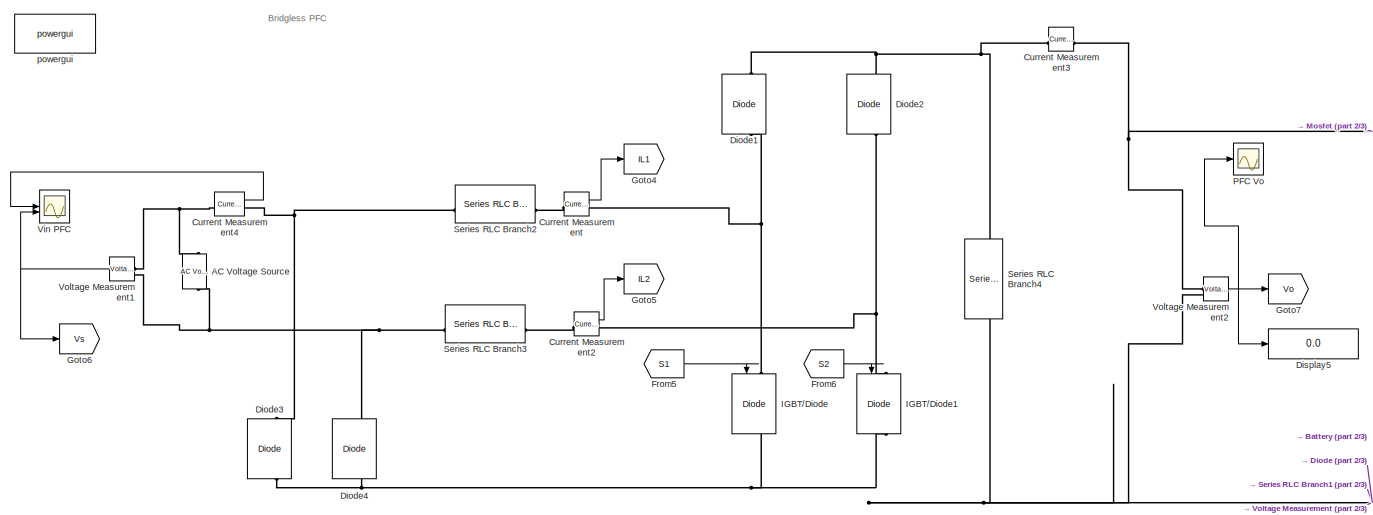
[diagram: root canvas - part 1/3, top left region]
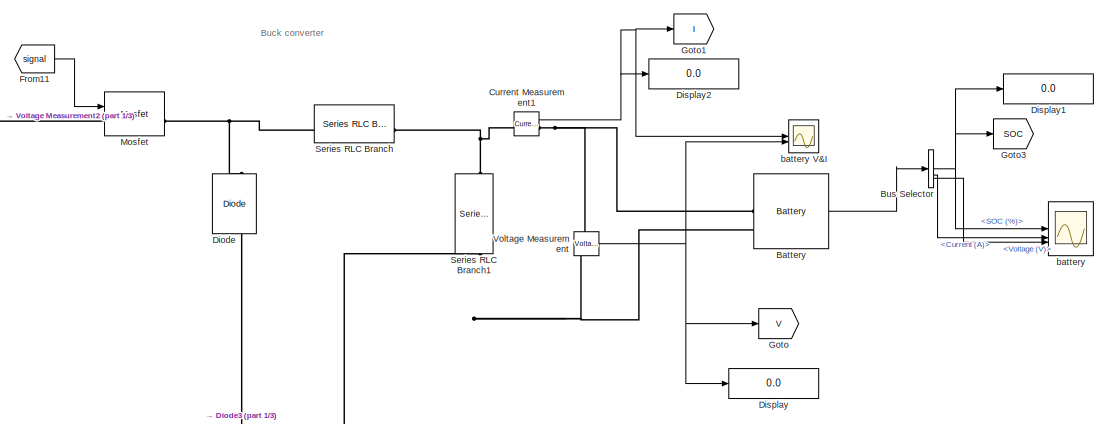
[diagram: root canvas - part 2/3, top right region]
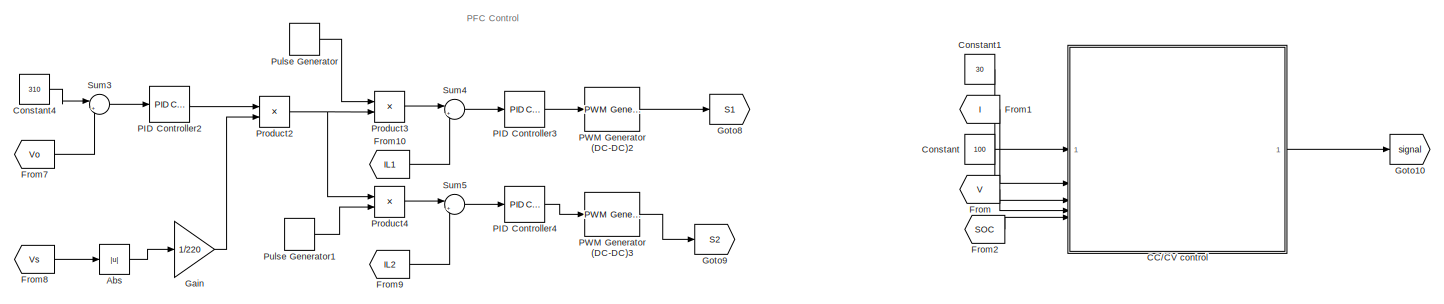
[diagram: root canvas - part 3/3, bottom center region]
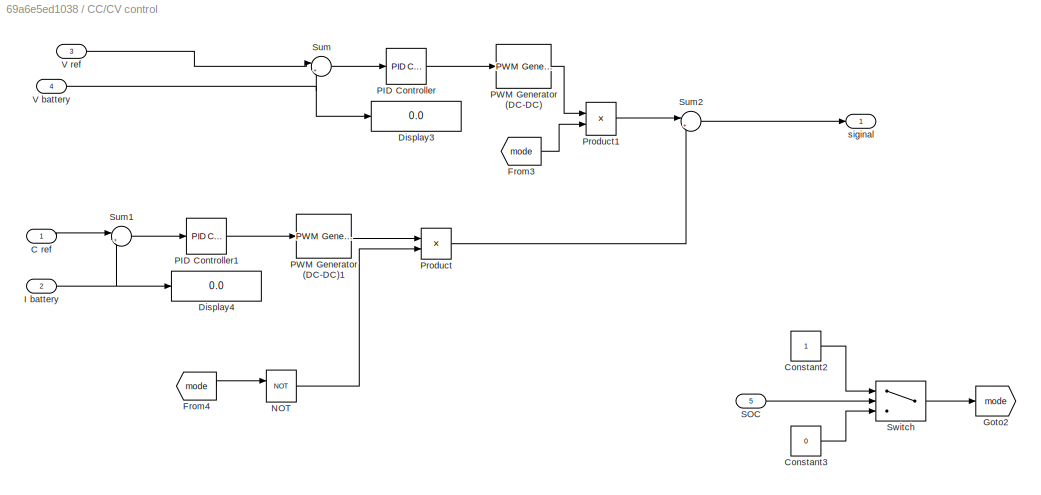
MODEL slx_69a6e5ed1038
KIND model
CONFIG AbsTol = auto
CONFIG EnableMultiTasking = off
CONFIG FixedStep = auto
CONFIG MaxStep = 1e-5
CONFIG MinStep = auto
CONFIG RelTol = 1e-3
CONFIG SampleTimeConstraint = Unconstrained
CONFIG SolverName = ode23tb
CONFIG StartTime = 0.0
CONFIG StopTime = 2
BLOCK [Reference] AC Voltage Source  REF=spsACVoltageSourceLib/AC Voltage Source
  LibrarySourceBlock = sps_lib/Sources/AC Voltage Source
  SourceBlock = spsACVoltageSourceLib/AC Voltage Source
  SourceType = AC Voltage Source
BLOCK [Abs] Abs
  SaturateOnIntegerOverflow = off
BLOCK [Reference] Battery  REF=spsBatteryLib/Battery
  LibrarySourceBlock = sps_lib/Sources/Battery
  SourceBlock = spsBatteryLib/Battery
  SourceType = Battery
BLOCK [BusSelector] Bus Selector
  OutputSignals = SOC (%),Current (A),Voltage (V)
BLOCK [SubSystem] CC//CV control
BLOCK [Inport] CC//CV control/C ref
BLOCK [Constant] CC//CV control/Constant2
BLOCK [Constant] CC//CV control/Constant3
  Value = 0
BLOCK [Display] CC//CV control/Display3
  Decimation = 1
BLOCK [Display] CC//CV control/Display4
  Decimation = 1
BLOCK [From] CC//CV control/From3
  GotoTag = mode
BLOCK [From] CC//CV control/From4
  GotoTag = mode
BLOCK [Goto] CC//CV control/Goto2
  GotoTag = mode
BLOCK [Inport] CC//CV control/I battery
  Port = 2
BLOCK [Logic] CC//CV control/NOT
  AllPortsSameDT = off
  IconShape = distinctive
  Operator = NOT
  OutDataTypeStr = boolean
BLOCK [Reference] CC//CV control/PID Controller  REF=slpidlib/PID Controller
  LibrarySourceBlock = simulink/Continuous/PID Controller
  SourceBlock = slpidlib/PID Controller
  SourceType = PID 1dof
BLOCK [Reference] CC//CV control/PID Controller1  REF=slpidlib/PID Controller
  LibrarySourceBlock = simulink/Continuous/PID Controller
  SourceBlock = slpidlib/PID Controller
  SourceType = PID 1dof
BLOCK [Reference] CC//CV control/PWM Generator (DC-DC)  REF=spsPWMGeneratorDCDCLib/PWM Generator
(DC-DC)
  LibrarySourceBlock = sps_lib/Power Electronics/Power Electronics Control/PWM Generator\n(DC-DC)
  SourceBlock = spsPWMGeneratorDCDCLib/PWM Generator\n(DC-DC)
  SourceType = PWM Generator (DC-DC)
BLOCK [Reference] CC//CV control/PWM Generator (DC-DC)1  REF=spsPWMGeneratorDCDCLib/PWM Generator
(DC-DC)
  LibrarySourceBlock = sps_lib/Power Electronics/Power Electronics Control/PWM Generator\n(DC-DC)
  SourceBlock = spsPWMGeneratorDCDCLib/PWM Generator\n(DC-DC)
  SourceType = PWM Generator (DC-DC)
BLOCK [Product] CC//CV control/Product
BLOCK [Product] CC//CV control/Product1
BLOCK [Inport] CC//CV control/SOC
  Port = 5
BLOCK [Sum] CC//CV control/Sum
  Inputs = |+-
BLOCK [Sum] CC//CV control/Sum1
  Inputs = |+-
BLOCK [Sum] CC//CV control/Sum2
  Inputs = |++
BLOCK [Switch] CC//CV control/Switch
  Criteria = u2 > Threshold
  InputSameDT = off
  SaturateOnIntegerOverflow = off
  Threshold = 80
BLOCK [Inport] CC//CV control/V battery
  Port = 4
BLOCK [Inport] CC//CV control/V ref
  Port = 3
BLOCK [Outport] CC//CV control/siginal
BLOCK [Constant] Constant
  Value = 100
BLOCK [Constant] Constant1
  Value = 30
BLOCK [Constant] Constant4
  Value = 310
BLOCK [Reference] Current Measurement  REF=spsCurrentMeasurementLib/Current Measurement
  LibrarySourceBlock = sps_lib/Sensors and Measurements/Current Measurement
  SourceBlock = spsCurrentMeasurementLib/Current Measurement
  SourceType = Current Measurement
  UserDataPersistent = on
BLOCK [Reference] Current Measurement1  REF=spsCurrentMeasurementLib/Current Measurement
  LibrarySourceBlock = sps_lib/Sensors and Measurements/Current Measurement
  SourceBlock = spsCurrentMeasurementLib/Current Measurement
  SourceType = Current Measurement
  UserDataPersistent = on
BLOCK [Reference] Current Measurement2  REF=spsCurrentMeasurementLib/Current Measurement
  LibrarySourceBlock = sps_lib/Sensors and Measurements/Current Measurement
  SourceBlock = spsCurrentMeasurementLib/Current Measurement
  SourceType = Current Measurement
  UserDataPersistent = on
BLOCK [Reference] Current Measurement3  REF=spsCurrentMeasurementLib/Current Measurement
  LibrarySourceBlock = sps_lib/Sensors and Measurements/Current Measurement
  SourceBlock = spsCurrentMeasurementLib/Current Measurement
  SourceType = Current Measurement
  UserDataPersistent = on
BLOCK [Reference] Current Measurement4  REF=spsCurrentMeasurementLib/Current Measurement
  LibrarySourceBlock = sps_lib/Sensors and Measurements/Current Measurement
  SourceBlock = spsCurrentMeasurementLib/Current Measurement
  SourceType = Current Measurement
  UserDataPersistent = on
BLOCK [Reference] Diode  REF=spsDiodeLib/Diode
  LibrarySourceBlock = sps_lib/Power Electronics/Diode
  NameLocation = right
  SourceBlock = spsDiodeLib/Diode
  SourceType = Diode
BLOCK [Reference] Diode1  REF=spsDiodeLib/Diode
  LibrarySourceBlock = sps_lib/Power Electronics/Diode
  NameLocation = right
  SourceBlock = spsDiodeLib/Diode
  SourceType = Diode
BLOCK [Reference] Diode2  REF=spsDiodeLib/Diode
  LibrarySourceBlock = sps_lib/Power Electronics/Diode
  NameLocation = right
  SourceBlock = spsDiodeLib/Diode
  SourceType = Diode
BLOCK [Reference] Diode3  REF=spsDiodeLib/Diode
  LibrarySourceBlock = sps_lib/Power Electronics/Diode
  NameLocation = right
  SourceBlock = spsDiodeLib/Diode
  SourceType = Diode
BLOCK [Reference] Diode4  REF=spsDiodeLib/Diode
  LibrarySourceBlock = sps_lib/Power Electronics/Diode
  NameLocation = right
  SourceBlock = spsDiodeLib/Diode
  SourceType = Diode
BLOCK [Display] Display
  Decimation = 1
BLOCK [Display] Display1
  Decimation = 1
BLOCK [Display] Display2
  Decimation = 1
BLOCK [Display] Display5
  Decimation = 1
BLOCK [From] From
  GotoTag = V
BLOCK [From] From1
  GotoTag = I
BLOCK [From] From10
  GotoTag = IL1
BLOCK [From] From11
  GotoTag = signal
BLOCK [From] From2
  GotoTag = SOC
BLOCK [From] From5
  GotoTag = S1
BLOCK [From] From6
  GotoTag = S2
BLOCK [From] From7
  GotoTag = Vo
BLOCK [From] From8
  GotoTag = Vs
BLOCK [From] From9
  GotoTag = IL2
BLOCK [Gain] Gain
  Gain = 1/220
BLOCK [Goto] Goto
  GotoTag = V
BLOCK [Goto] Goto1
  GotoTag = I
BLOCK [Goto] Goto10
  GotoTag = signal
BLOCK [Goto] Goto3
  GotoTag = SOC
BLOCK [Goto] Goto4
  GotoTag = IL1
BLOCK [Goto] Goto5
  GotoTag = IL2
BLOCK [Goto] Goto6
  GotoTag = Vs
BLOCK [Goto] Goto7
  GotoTag = Vo
BLOCK [Goto] Goto8
  GotoTag = S1
BLOCK [Goto] Goto9
  GotoTag = S2
BLOCK [Reference] IGBT//Diode  REF=spsIGBTDiodeLib/IGBT//Diode
  LibrarySourceBlock = sps_lib/Power Electronics/IGBT//Diode
  NameLocation = left
  SourceBlock = spsIGBTDiodeLib/IGBT//Diode
  SourceType = IGBT/Diode
BLOCK [Reference] IGBT//Diode1  REF=spsIGBTDiodeLib/IGBT//Diode
  LibrarySourceBlock = sps_lib/Power Electronics/IGBT//Diode
  NameLocation = left
  SourceBlock = spsIGBTDiodeLib/IGBT//Diode
  SourceType = IGBT/Diode
BLOCK [Reference] Mosfet  REF=spsMosfetLib/Mosfet
  LibrarySourceBlock = sps_lib/Power Electronics/Mosfet
  NameLocation = top
  SourceBlock = spsMosfetLib/Mosfet
  SourceType = Mosfet
BLOCK [Scope] PFC Vo
  Floating = off
  NumInputPorts = 1
  ScopeSpecificationString = Simulink.scopes.TimeScopeBlockCfg('CurrentConfiguration', extmgr.ConfigurationSet(extmgr.Configuration('Core','General UI',true,'FigureColor',[1 1 1]),extmgr.Configuration('Core','Source UI',true),extmgr.Configuration('Sources','WiredSimulink',true,'DataLoggingVariableName','ScopeData3'),extmgr.Configuration('Visuals','Time Domain',true,'SerializedDisplays',{struct('MinYLimReal','-40.71261','MaxYL...<+1509ch>
BLOCK [Reference] PID Controller2  REF=slpidlib/PID Controller
  LibrarySourceBlock = simulink/Continuous/PID Controller
  SourceBlock = slpidlib/PID Controller
  SourceType = PID 1dof
BLOCK [Reference] PID Controller3  REF=slpidlib/PID Controller
  LibrarySourceBlock = simulink/Continuous/PID Controller
  SourceBlock = slpidlib/PID Controller
  SourceType = PID 1dof
BLOCK [Reference] PID Controller4  REF=slpidlib/PID Controller
  LibrarySourceBlock = simulink/Continuous/PID Controller
  SourceBlock = slpidlib/PID Controller
  SourceType = PID 1dof
BLOCK [Reference] PWM Generator (DC-DC)2  REF=spsPWMGeneratorDCDCLib/PWM Generator
(DC-DC)
  LibrarySourceBlock = sps_lib/Power Electronics/Power Electronics Control/PWM Generator\n(DC-DC)
  SourceBlock = spsPWMGeneratorDCDCLib/PWM Generator\n(DC-DC)
  SourceType = PWM Generator (DC-DC)
BLOCK [Reference] PWM Generator (DC-DC)3  REF=spsPWMGeneratorDCDCLib/PWM Generator
(DC-DC)
  LibrarySourceBlock = sps_lib/Power Electronics/Power Electronics Control/PWM Generator\n(DC-DC)
  SourceBlock = spsPWMGeneratorDCDCLib/PWM Generator\n(DC-DC)
  SourceType = PWM Generator (DC-DC)
BLOCK [Product] Product2
BLOCK [Product] Product3
BLOCK [Product] Product4
BLOCK [DiscretePulseGenerator] Pulse Generator
  Period = 1/50
  PulseType = Time based
  PulseWidth = 50
BLOCK [DiscretePulseGenerator] Pulse Generator1
  Period = 1/50
  PhaseDelay = 0.01
  PulseType = Time based
  PulseWidth = 50
BLOCK [Reference] Series RLC Branch  REF=spsSeriesRLCBranchLib/Series RLC Branch
  LibrarySourceBlock = sps_lib/Passives/Series RLC Branch
  NameLocation = top
  SourceBlock = spsSeriesRLCBranchLib/Series RLC Branch
  SourceType = Series RLC Branch
BLOCK [Reference] Series RLC Branch1  REF=spsSeriesRLCBranchLib/Series RLC Branch
  LibrarySourceBlock = sps_lib/Passives/Series RLC Branch
  NameLocation = left
  SourceBlock = spsSeriesRLCBranchLib/Series RLC Branch
  SourceType = Series RLC Branch
BLOCK [Reference] Series RLC Branch2  REF=spsSeriesRLCBranchLib/Series RLC Branch
  LibrarySourceBlock = sps_lib/Passives/Series RLC Branch
  SourceBlock = spsSeriesRLCBranchLib/Series RLC Branch
  SourceType = Series RLC Branch
BLOCK [Reference] Series RLC Branch3  REF=spsSeriesRLCBranchLib/Series RLC Branch
  LibrarySourceBlock = sps_lib/Passives/Series RLC Branch
  SourceBlock = spsSeriesRLCBranchLib/Series RLC Branch
  SourceType = Series RLC Branch
BLOCK [Reference] Series RLC Branch4  REF=spsSeriesRLCBranchLib/Series RLC Branch
  LibrarySourceBlock = sps_lib/Passives/Series RLC Branch
  NameLocation = left
  SourceBlock = spsSeriesRLCBranchLib/Series RLC Branch
  SourceType = Series RLC Branch
BLOCK [Sum] Sum3
  Inputs = |+-
BLOCK [Sum] Sum4
  Inputs = |+-
BLOCK [Sum] Sum5
  Inputs = |+-
BLOCK [Scope] Vin PFC
  Floating = off
  NumInputPorts = 2
  ScopeSpecificationString = Simulink.scopes.TimeScopeBlockCfg('CurrentConfiguration', extmgr.ConfigurationSet(extmgr.Configuration('Core','General UI',true,'FigureColor',[1 1 1]),extmgr.Configuration('Core','Source UI',true),extmgr.Configuration('Sources','WiredSimulink',true,'DataLoggingVariableName','ScopeData2'),extmgr.Configuration('Visuals','Time Domain',true,'SerializedDisplays',{struct('MinYLimReal','-275.83485','MaxY...<+1742ch>
BLOCK [Reference] Voltage Measurement  REF=spsVoltageMeasurementLib/Voltage Measurement
  LibrarySourceBlock = sps_lib/Sensors and Measurements/Voltage Measurement
  SourceBlock = spsVoltageMeasurementLib/Voltage Measurement
  SourceType = Voltage Measurement
  UserDataPersistent = on
BLOCK [Reference] Voltage Measurement1  REF=spsVoltageMeasurementLib/Voltage Measurement
  LibrarySourceBlock = sps_lib/Sensors and Measurements/Voltage Measurement
  SourceBlock = spsVoltageMeasurementLib/Voltage Measurement
  SourceType = Voltage Measurement
  UserDataPersistent = on
BLOCK [Reference] Voltage Measurement2  REF=spsVoltageMeasurementLib/Voltage Measurement
  LibrarySourceBlock = sps_lib/Sensors and Measurements/Voltage Measurement
  SourceBlock = spsVoltageMeasurementLib/Voltage Measurement
  SourceType = Voltage Measurement
  UserDataPersistent = on
BLOCK [Scope] battery
  Floating = off
  NumInputPorts = 3
  ScopeSpecificationString = Simulink.scopes.TimeScopeBlockCfg('CurrentConfiguration', extmgr.ConfigurationSet(extmgr.Configuration('Core','General UI',true,'FigureColor',[1 1 1]),extmgr.Configuration('Core','Source UI',true),extmgr.Configuration('Sources','WiredSimulink',true),extmgr.Configuration('Visuals','Time Domain',true,'SerializedDisplays',{struct('MinYLimReal','79.97821','MaxYLimReal','79.99498','YLabelReal','','MinY...<+3132ch>
BLOCK [Scope] battery V&I
  Floating = off
  NumInputPorts = 2
  ScopeSpecificationString = Simulink.scopes.TimeScopeBlockCfg('CurrentConfiguration', extmgr.ConfigurationSet(extmgr.Configuration('Core','General UI',true,'FigureColor',[1 1 1]),extmgr.Configuration('Core','Source UI',true),extmgr.Configuration('Sources','WiredSimulink',true,'DataLoggingVariableName','ScopeData1'),extmgr.Configuration('Visuals','Time Domain',true,'SerializedDisplays',{struct('MinYLimReal','-26.82951','MaxYL...<+1616ch>
BLOCK [Reference] powergui  REF=sps_lib/powergui
  Priority = 1
  SourceBlock = sps_lib/powergui
  SourceType = PSB option menu block
ANNOTATION (root): PFC Control
ANNOTATION (root): Bridgless PFC
ANNOTATION (root): Buck converter
LINE Abs:1 -> Gain:1
LINE Battery:1 -> Bus Selector:1
NET Bus Selector:1 -> Display1:1, Goto3:1, battery:1
LINE Bus Selector:2 -> battery:2
LINE Bus Selector:3 -> battery:3
LINE CC//CV control/C ref:1 -> CC//CV control/Sum1:1
LINE CC//CV control/Constant2:1 -> CC//CV control/Switch:1
LINE CC//CV control/Constant3:1 -> CC//CV control/Switch:3
LINE CC//CV control/From3:1 -> CC//CV control/Product1:2
LINE CC//CV control/From4:1 -> CC//CV control/NOT:1
NET CC//CV control/I battery:1 -> CC//CV control/Display4:1, CC//CV control/Sum1:2
LINE CC//CV control/NOT:1 -> CC//CV control/Product:2
LINE CC//CV control/PID Controller1:1 -> CC//CV control/PWM Generator (DC-DC)1:1
LINE CC//CV control/PID Controller:1 -> CC//CV control/PWM Generator (DC-DC):1
LINE CC//CV control/PWM Generator (DC-DC)1:1 -> CC//CV control/Product:1
LINE CC//CV control/PWM Generator (DC-DC):1 -> CC//CV control/Product1:1
LINE CC//CV control/Product1:1 -> CC//CV control/Sum2:1
LINE CC//CV control/Product:1 -> CC//CV control/Sum2:2
LINE CC//CV control/SOC:1 -> CC//CV control/Switch:2
LINE CC//CV control/Sum1:1 -> CC//CV control/PID Controller1:1
LINE CC//CV control/Sum2:1 -> CC//CV control/siginal:1
LINE CC//CV control/Sum:1 -> CC//CV control/PID Controller:1
LINE CC//CV control/Switch:1 -> CC//CV control/Goto2:1
NET CC//CV control/V battery:1 -> CC//CV control/Display3:1, CC//CV control/Sum:2
LINE CC//CV control/V ref:1 -> CC//CV control/Sum:1
LINE CC//CV control:1 -> Goto10:1
LINE Constant1:1 -> CC//CV control:1
LINE Constant4:1 -> Sum3:1
LINE Constant:1 -> CC//CV control:3
NET Current Measurement1:1 -> Display2:1, Goto1:1, battery V&I:1
LINE Current Measurement2:1 -> Goto5:1
LINE Current Measurement4:1 -> Vin PFC:1
LINE Current Measurement:1 -> Goto4:1
LINE From10:1 -> Sum4:2
LINE From11:1 -> Mosfet:1
LINE From1:1 -> CC//CV control:2
LINE From2:1 -> CC//CV control:5
LINE From5:1 -> IGBT//Diode:1
LINE From6:1 -> IGBT//Diode1:1
LINE From7:1 -> Sum3:2
LINE From8:1 -> Abs:1
LINE From9:1 -> Sum5:2
LINE From:1 -> CC//CV control:4
LINE Gain:1 -> Product2:2
LINE PID Controller2:1 -> Product2:1
LINE PID Controller3:1 -> PWM Generator (DC-DC)2:1
LINE PID Controller4:1 -> PWM Generator (DC-DC)3:1
LINE PWM Generator (DC-DC)2:1 -> Goto8:1
LINE PWM Generator (DC-DC)3:1 -> Goto9:1
NET Product2:1 -> Product3:2, Product4:1
LINE Product3:1 -> Sum4:1
LINE Product4:1 -> Sum5:1
LINE Pulse Generator1:1 -> Product4:2
LINE Pulse Generator:1 -> Product3:1
LINE Sum3:1 -> PID Controller2:1
LINE Sum4:1 -> PID Controller3:1
LINE Sum5:1 -> PID Controller4:1
NET Voltage Measurement1:1 -> Goto6:1, Vin PFC:2
NET Voltage Measurement2:1 -> Display5:1, Goto7:1, PFC Vo:1
NET Voltage Measurement:1 -> Display:1, Goto:1, battery V&I:2
PNET net1: AC Voltage Source:LConn1 -- Diode4:RConn1 -- Series RLC Branch3:LConn1 -- Voltage Measurement1:LConn2
PNET net2: AC Voltage Source:RConn1 -- Current Measurement4:LConn1 -- Voltage Measurement1:LConn1
PNET net3: Battery:LConn1 -- Current Measurement1:RConn1 -- Voltage Measurement:LConn1
PNET net4: Battery:LConn2 -- Diode3:LConn1 -- Diode4:LConn1 -- Diode:LConn1 -- IGBT//Diode1:RConn1 -- IGBT//Diode:RConn1 -- Series RLC Branch1:RConn1 -- Series RLC Branch4:RConn1 -- Voltage Measurement2:LConn2 -- Voltage Measurement:LConn2
PNET net5: Current Measurement1:LConn1 -- Series RLC Branch1:LConn1 -- Series RLC Branch:LConn1
PLINE Current Measurement2:LConn1 -- Series RLC Branch3:RConn1
PNET net6: Current Measurement2:RConn1 -- Diode2:LConn1 -- IGBT//Diode1:LConn1
PNET net7: Current Measurement3:LConn1 -- Diode1:RConn1 -- Diode2:RConn1 -- Series RLC Branch4:LConn1
PNET net8: Current Measurement3:RConn1 -- Mosfet:LConn1 -- Voltage Measurement2:LConn1
PNET net9: Current Measurement4:RConn1 -- Diode3:RConn1 -- Series RLC Branch2:LConn1
PLINE Current Measurement:LConn1 -- Series RLC Branch2:RConn1
PNET net10: Current Measurement:RConn1 -- Diode1:LConn1 -- IGBT//Diode:LConn1
PNET net11: Diode:RConn1 -- Mosfet:RConn1 -- Series RLC Branch:RConn1
note: NET lines group one-source signal fan-out (src -> all destinations, sorted); 1:1 wires keep LINE; PNET lines group multi-terminal physical nets as a canonical sorted terminal list (undirected conserving connections); 2-terminal nets keep the pairwise PLINE form
